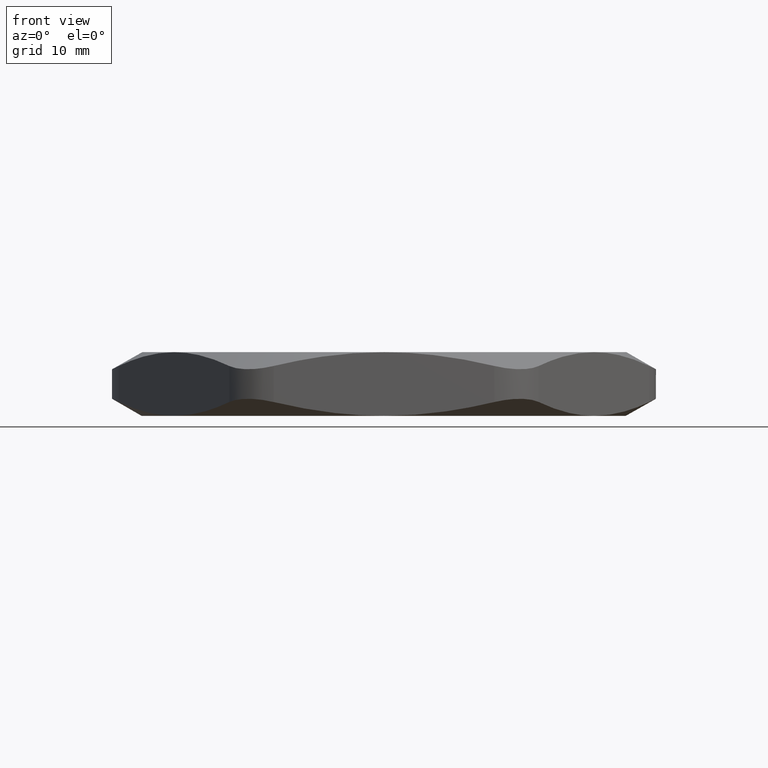
[diagram: clean part render]
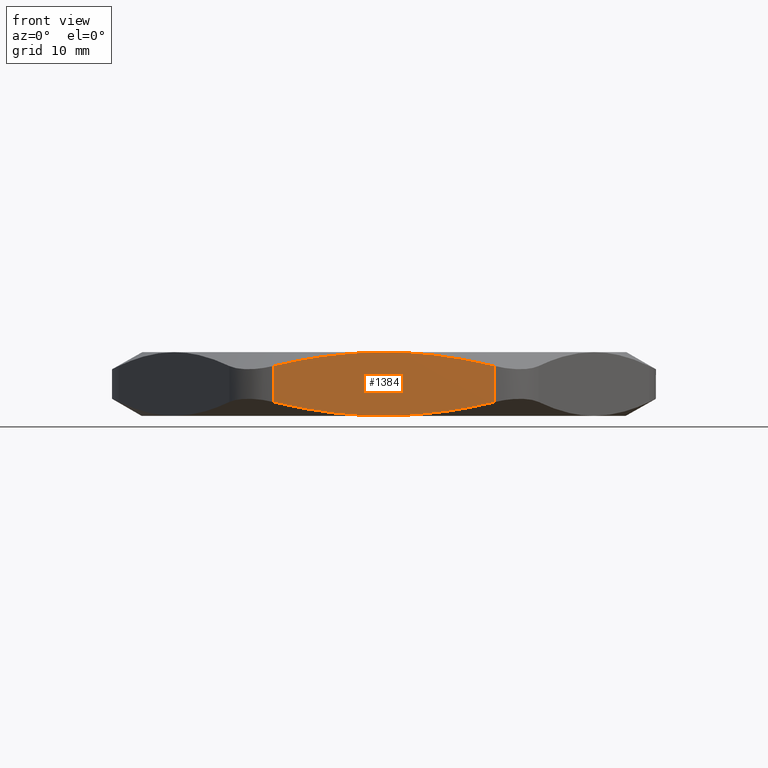
[diagram: same view with one face highlighted and labeled with its STEP entity id]
A machine part, front view. The second image highlights one B-rep face of the part: STEP entity #1384.
In plain terms, the highlighted planar face has unit normal (-0, 1, 0).
Its self-contained STEP definition (entity closure, byte-faithful):
#1363 = ORIENTED_EDGE ( 'NONE', *, *, #1364, .F. ) ;
#1364 = EDGE_CURVE ( 'NONE', #1389, #1380, #2565, .T. ) ;
#1375 = ORIENTED_EDGE ( 'NONE', *, *, #1376, .F. ) ;
#1376 = EDGE_CURVE ( 'NONE', #1377, #1441, #2643, .T. ) ;
#1377 = VERTEX_POINT ( 'NONE', #2642 ) ;
#1378 = ORIENTED_EDGE ( 'NONE', *, *, #1379, .T. ) ;
#1379 = EDGE_CURVE ( 'NONE', #1377, #1380, #2635, .T. ) ;
#1380 = VERTEX_POINT ( 'NONE', #2631 ) ;
#1384 = ADVANCED_FACE ( 'NONE', ( #2630 ), #2627, .F. ) ;
#1385 = EDGE_LOOP ( 'NONE', ( #1386, #1390, #1393, #1375, #1378, #1363 ) ) ;
#1386 = ORIENTED_EDGE ( 'NONE', *, *, #1387, .F. ) ;
#1387 = EDGE_CURVE ( 'NONE', #1388, #1389, #2673, .T. ) ;
#1388 = VERTEX_POINT ( 'NONE', #2672 ) ;
#1389 = VERTEX_POINT ( 'NONE', #2674 ) ;
#1390 = ORIENTED_EDGE ( 'NONE', *, *, #1391, .T. ) ;
#1391 = EDGE_CURVE ( 'NONE', #1388, #1392, #2661, .T. ) ;
#1392 = VERTEX_POINT ( 'NONE', #2657 ) ;
#1393 = ORIENTED_EDGE ( 'NONE', *, *, #1394, .F. ) ;
#1394 = EDGE_CURVE ( 'NONE', #1441, #1392, #2655, .T. ) ;
#1441 = VERTEX_POINT ( 'NONE', #2725 ) ;
#2192 = CARTESIAN_POINT ( 'NONE',  ( 0.2490155983964342800, -1.179999999999999900, 0.2951099322760525300 ) ) ;
#2193 = CARTESIAN_POINT ( 'NONE',  ( 0.3612328827272187600, -1.179999999999999900, 0.2805846981284586500 ) ) ;
#2197 = CARTESIAN_POINT ( 'NONE',  ( 0.5369357503463522100, -1.179999999999999700, 0.2427859541343050900 ) ) ;
#2198 = CARTESIAN_POINT ( 'NONE',  ( 0.4496078843157642600, -1.179999999999999500, 0.2636678267212726500 ) ) ;
#2559 = CARTESIAN_POINT ( 'NONE',  ( -0.3592866603774632100, -1.179999999999999500, 0.02909769553476565500 ) ) ;
#2560 = CARTESIAN_POINT ( 'NONE',  ( -0.1803601917600436700, -1.179999999999999900, 0.006070318766098837900 ) ) ;
#2561 = CARTESIAN_POINT ( 'NONE',  ( -0.09043671930186598900, -1.179999999999999900, -2.280986361897407400E-016 ) ) ;
#2562 = CARTESIAN_POINT ( 'NONE',  ( 2.365849761790802000E-016, -1.180000000000000200, 0.0000000000000000000 ) ) ;
#2565 = B_SPLINE_CURVE_WITH_KNOTS ( 'NONE', 3,
 ( #2562, #2561, #2560, #2559, #2615, #2614 ),
 .UNSPECIFIED., .F., .F.,
 ( 4, 2, 4 ),
 ( 0.09629130399620164400, 0.1031685698360219200, 0.1100458356758422000 ),
 .UNSPECIFIED. ) ;
#2614 = CARTESIAN_POINT ( 'NONE',  ( -0.5369357503463523300, -1.179999999999999900, 0.06721404586569511300 ) ) ;
#2615 = CARTESIAN_POINT ( 'NONE',  ( -0.4483414298499867100, -1.179999999999999900, 0.04602933820449919800 ) ) ;
#2616 = DIRECTION ( 'NONE',  ( -1.000000000000000000, -2.004957425246442400E-016, 0.0000000000000000000 ) ) ;
#2617 = DIRECTION ( 'NONE',  ( -2.004957425246442400E-016, 1.000000000000000000, 0.0000000000000000000 ) ) ;
#2626 = CARTESIAN_POINT ( 'NONE',  ( -0.6812733176437586500, -1.179999999999999900, 0.3100000000000000000 ) ) ;
#2627 = PLANE ( 'NONE',  #2629 ) ;
#2629 = AXIS2_PLACEMENT_3D ( 'NONE', #2626, #2617, #2616 ) ;
#2630 = FACE_OUTER_BOUND ( 'NONE', #1385, .T. ) ;
#2631 = CARTESIAN_POINT ( 'NONE',  ( -0.5369357503463523300, -1.179999999999999900, 0.06721404586569511300 ) ) ;
#2632 = DIRECTION ( 'NONE',  ( 0.0000000000000000000, 0.0000000000000000000, -1.000000000000000000 ) ) ;
#2633 = VECTOR ( 'NONE', #2632, 39.37007874015748100 ) ;
#2634 = CARTESIAN_POINT ( 'NONE',  ( -0.5369357503463522100, -1.179999999999999900, 0.3100000000000000000 ) ) ;
#2635 = LINE ( 'NONE', #2634, #2633 ) ;
#2636 = CARTESIAN_POINT ( 'NONE',  ( 2.365849761790801500E-016, -1.179999999999999900, 0.3100000000000000000 ) ) ;
#2637 = CARTESIAN_POINT ( 'NONE',  ( -0.09043671930185660800, -1.179999999999999900, 0.3100000000000001600 ) ) ;
#2638 = CARTESIAN_POINT ( 'NONE',  ( -0.1803601917600251800, -1.179999999999999500, 0.3039296812339023500 ) ) ;
#2639 = CARTESIAN_POINT ( 'NONE',  ( -0.3592866603774269600, -1.180000000000000200, 0.2809023044652400000 ) ) ;
#2640 = CARTESIAN_POINT ( 'NONE',  ( -0.4483414298499406300, -1.179999999999999700, 0.2639706617955099900 ) ) ;
#2641 = CARTESIAN_POINT ( 'NONE',  ( -0.5369357503462982600, -1.179999999999999900, 0.2427859541343179400 ) ) ;
#2642 = CARTESIAN_POINT ( 'NONE',  ( -0.5369357503462982600, -1.179999999999999900, 0.2427859541343179400 ) ) ;
#2643 = B_SPLINE_CURVE_WITH_KNOTS ( 'NONE', 3,
 ( #2641, #2640, #2639, #2638, #2637, #2636 ),
 .UNSPECIFIED., .F., .F.,
 ( 4, 2, 4 ),
 ( 0.03544491570111547200, 0.04231837440594568600, 0.04919183311077590700 ),
 .UNSPECIFIED. ) ;
#2646 = CARTESIAN_POINT ( 'NONE',  ( 0.2264847364169941000, -1.180000000000000200, 0.2976840177752518300 ) ) ;
#2647 = CARTESIAN_POINT ( 'NONE',  ( 0.1812379093699325600, -1.179999999999999700, 0.3021312919724253300 ) ) ;
#2648 = CARTESIAN_POINT ( 'NONE',  ( 0.1584856043568612100, -1.179999999999999500, 0.3040059380878916100 ) ) ;
#2649 = CARTESIAN_POINT ( 'NONE',  ( 0.09040044257290041900, -1.179999999999999900, 0.3084998303428827000 ) ) ;
#2650 = CARTESIAN_POINT ( 'NONE',  ( 0.04513680144219005300, -1.179999999999999900, 0.3100000000000001600 ) ) ;
#2651 = CARTESIAN_POINT ( 'NONE',  ( 2.365849761790801500E-016, -1.179999999999999900, 0.3100000000000000000 ) ) ;
#2655 = B_SPLINE_CURVE_WITH_KNOTS ( 'NONE', 3,
 ( #2651, #2650, #2649, #2648, #2647, #2646, #2192, #2193, #2198, #2197 ),
 .UNSPECIFIED., .F., .F.,
 ( 4, 2, 2, 2, 4 ),
 ( 0.04919183311077590700, 0.05262236379760327300, 0.05433762914101695300, 0.05605289448443063300, 0.06291395585808536000 ),
 .UNSPECIFIED. ) ;
#2657 = CARTESIAN_POINT ( 'NONE',  ( 0.5369357503463522100, -1.179999999999999700, 0.2427859541343050900 ) ) ;
#2658 = DIRECTION ( 'NONE',  ( 0.0000000000000000000, 0.0000000000000000000, 1.000000000000000000 ) ) ;
#2659 = VECTOR ( 'NONE', #2658, 39.37007874015748100 ) ;
#2660 = CARTESIAN_POINT ( 'NONE',  ( 0.5369357503463518800, -1.179999999999999700, 0.3100000000000000000 ) ) ;
#2661 = LINE ( 'NONE', #2660, #2659 ) ;
#2662 = CARTESIAN_POINT ( 'NONE',  ( 2.365849761790802000E-016, -1.180000000000000200, 0.0000000000000000000 ) ) ;
#2663 = CARTESIAN_POINT ( 'NONE',  ( 0.04513680144218985800, -1.179999999999999500, -2.407707826447263200E-016 ) ) ;
#2664 = CARTESIAN_POINT ( 'NONE',  ( 0.09040044257290004400, -1.180000000000000200, 0.001500169657117304800 ) ) ;
#2665 = CARTESIAN_POINT ( 'NONE',  ( 0.1584856043568609000, -1.180000000000000200, 0.005994061912108385500 ) ) ;
#2666 = CARTESIAN_POINT ( 'NONE',  ( 0.1812379093699328400, -1.179999999999999900, 0.007868708027574654700 ) ) ;
#2667 = CARTESIAN_POINT ( 'NONE',  ( 0.2264847364169943800, -1.179999999999999700, 0.01231598222474834300 ) ) ;
#2668 = CARTESIAN_POINT ( 'NONE',  ( 0.2490155983964343600, -1.179999999999999900, 0.01489006772394748500 ) ) ;
#2669 = CARTESIAN_POINT ( 'NONE',  ( 0.3612328827272187100, -1.179999999999999500, 0.02941530187154136500 ) ) ;
#2670 = CARTESIAN_POINT ( 'NONE',  ( 0.4496078843157641500, -1.179999999999999300, 0.04633217327872736500 ) ) ;
#2671 = CARTESIAN_POINT ( 'NONE',  ( 0.5369357503463522100, -1.179999999999999700, 0.06721404586569487700 ) ) ;
#2672 = CARTESIAN_POINT ( 'NONE',  ( 0.5369357503463522100, -1.179999999999999700, 0.06721404586569487700 ) ) ;
#2673 = B_SPLINE_CURVE_WITH_KNOTS ( 'NONE', 3,
 ( #2671, #2670, #2669, #2668, #2667, #2666, #2665, #2664, #2663, #2662 ),
 .UNSPECIFIED., .F., .F.,
 ( 4, 2, 2, 2, 4 ),
 ( 0.08256158071241076500, 0.08942644235430620400, 0.09114265776478007500, 0.09285887317525393100, 0.09629130399620164400 ),
 .UNSPECIFIED. ) ;
#2674 = CARTESIAN_POINT ( 'NONE',  ( 2.365849761790802000E-016, -1.180000000000000200, 0.0000000000000000000 ) ) ;
#2725 = CARTESIAN_POINT ( 'NONE',  ( 2.365849761790801500E-016, -1.179999999999999900, 0.3100000000000000000 ) ) ;